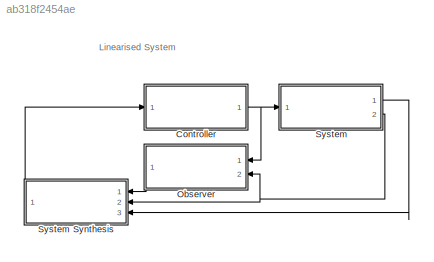
MODEL slx_ab318f2454ae
KIND model
CONFIG AbsTol = auto
CONFIG EnableMultiTasking = off
CONFIG FixedStep = auto
CONFIG MaxStep = auto
CONFIG MinStep = auto
CONFIG RelTol = 1e-3
CONFIG SampleTimeConstraint = Unconstrained
CONFIG SolverName = VariableStepAuto
CONFIG StartTime = 0.0
CONFIG StopTime = 300
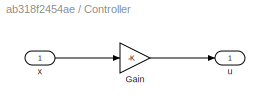
BLOCK [SubSystem] Controller
  Ports = [1, 1]
  RequestExecContextInheritance = off
BLOCK [Gain] Controller/Gain
  Gain = -K
  Multiplication = Matrix(K*u)
BLOCK [Outport] Controller/u
BLOCK [Inport] Controller/x
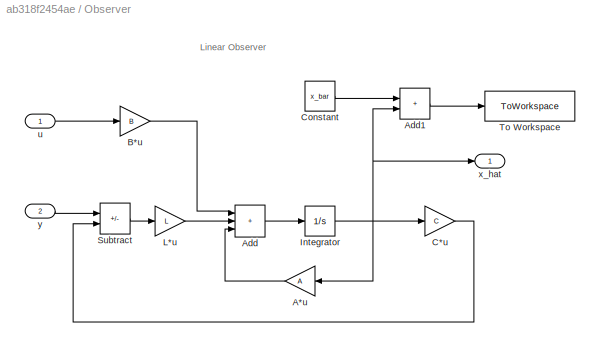
BLOCK [SubSystem] Observer
  Ports = [2, 1]
  RequestExecContextInheritance = off
BLOCK [Gain] Observer/A*u
  Gain = A
  Multiplication = Matrix(K*u)
BLOCK [Sum] Observer/Add
  IconShape = rectangular
  Inputs = +++
  Ports = [3, 1]
BLOCK [Sum] Observer/Add1
  IconShape = rectangular
  Ports = [2, 1]
BLOCK [Gain] Observer/B*u
  Gain = B
  Multiplication = Matrix(K*u)
BLOCK [Gain] Observer/C*u
  Gain = C
  Multiplication = Matrix(K*u)
BLOCK [Constant] Observer/Constant
  Value = x_bar
BLOCK [Integrator] Observer/Integrator
  InitialCondition = x0-x_bar'
  Ports = [1, 1]
BLOCK [Gain] Observer/L*u
  Gain = L
  Multiplication = Matrix(K*u)
BLOCK [Sum] Observer/Subtract
  IconShape = rectangular
  Inputs = +-
  Ports = [2, 1]
BLOCK [ToWorkspace] Observer/To Workspace
  FixptAsFi = on
  MaxDataPoints = inf
  Ports = [1]
  SampleTime = -1
  VariableName = x_hat
BLOCK [Inport] Observer/u
BLOCK [Outport] Observer/x_hat
BLOCK [Inport] Observer/y
  Port = 2
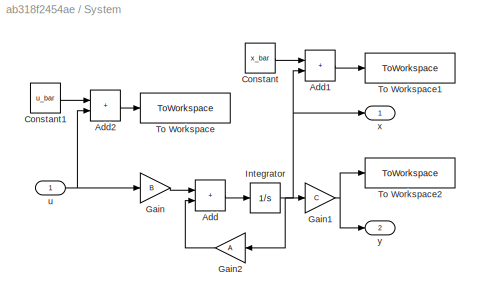
BLOCK [SubSystem] System
  Ports = [1, 2]
  RequestExecContextInheritance = off
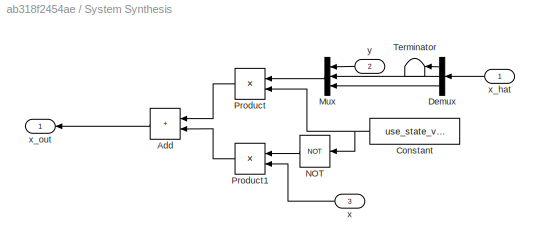
BLOCK [SubSystem] System Synthesis
  NameLocation = top
  Ports = [3, 1]
  RequestExecContextInheritance = off
BLOCK [Sum] System Synthesis/Add
  IconShape = rectangular
  NameLocation = top
  Ports = [2, 1]
BLOCK [Constant] System Synthesis/Constant
  NameLocation = top
  Value = use_state_variables
BLOCK [Demux] System Synthesis/Demux
  NameLocation = top
  Outputs = 3
  Ports = [1, 3]
BLOCK [Mux] System Synthesis/Mux
  DisplayOption = bar
  Inputs = 3
  NameLocation = top
  Ports = [3, 1]
BLOCK [Logic] System Synthesis/NOT
  AllPortsSameDT = off
  IconShape = distinctive
  NameLocation = top
  Operator = NOT
  OutDataTypeStr = boolean
  Ports = [1, 1]
BLOCK [Product] System Synthesis/Product
  NameLocation = top
  Ports = [2, 1]
BLOCK [Product] System Synthesis/Product1
  NameLocation = top
  Ports = [2, 1]
BLOCK [Terminator] System Synthesis/Terminator
  NameLocation = top
BLOCK [Inport] System Synthesis/x
  NameLocation = top
  Port = 3
BLOCK [Inport] System Synthesis/x_hat
  NameLocation = top
BLOCK [Outport] System Synthesis/x_out
  NameLocation = top
BLOCK [Inport] System Synthesis/y
  NameLocation = top
  Port = 2
BLOCK [Sum] System/Add
  IconShape = rectangular
  Ports = [2, 1]
BLOCK [Sum] System/Add1
  IconShape = rectangular
  Ports = [2, 1]
BLOCK [Sum] System/Add2
  IconShape = rectangular
  Ports = [2, 1]
BLOCK [Constant] System/Constant
  Value = x_bar
BLOCK [Constant] System/Constant1
  Value = u_bar
BLOCK [Gain] System/Gain
  Gain = B
  Multiplication = Matrix(K*u)
BLOCK [Gain] System/Gain1
  Gain = C
  Multiplication = Matrix(K*u)
BLOCK [Gain] System/Gain2
  Gain = A
  Multiplication = Matrix(K*u)
  NameLocation = top
BLOCK [Integrator] System/Integrator
  InitialCondition = x0-x_bar'
  Ports = [1, 1]
BLOCK [ToWorkspace] System/To Workspace
  FixptAsFi = on
  MaxDataPoints = inf
  Ports = [1]
  SampleTime = -1
  VariableName = u
BLOCK [ToWorkspace] System/To Workspace1
  FixptAsFi = on
  MaxDataPoints = inf
  Ports = [1]
  SampleTime = -1
  VariableName = x
BLOCK [ToWorkspace] System/To Workspace2
  FixptAsFi = on
  MaxDataPoints = inf
  Ports = [1]
  SampleTime = -1
  VariableName = y
BLOCK [Inport] System/u
BLOCK [Outport] System/x
BLOCK [Outport] System/y
  Port = 2
ANNOTATION (root): Linearised System
ANNOTATION Observer: Linear Observer
LINE Controller/Gain:1 -> Controller/u:1
LINE Controller/x:1 -> Controller/Gain:1
NET Controller:1 -> Observer:1, System:1
LINE Observer/A*u:1 -> Observer/Add:3
LINE Observer/Add1:1 -> Observer/To Workspace:1
LINE Observer/Add:1 -> Observer/Integrator:1
LINE Observer/B*u:1 -> Observer/Add:1
LINE Observer/C*u:1 -> Observer/Subtract:2
LINE Observer/Constant:1 -> Observer/Add1:1
NET Observer/Integrator:1 -> Observer/A*u:1, Observer/Add1:2, Observer/C*u:1, Observer/x_hat:1
LINE Observer/L*u:1 -> Observer/Add:2
LINE Observer/Subtract:1 -> Observer/L*u:1
LINE Observer/u:1 -> Observer/B*u:1
LINE Observer/y:1 -> Observer/Subtract:1
LINE Observer:1 -> System Synthesis:1
LINE System Synthesis/Add:1 -> System Synthesis/x_out:1
NET System Synthesis/Constant:1 -> System Synthesis/NOT:1, System Synthesis/Product:2
LINE System Synthesis/Demux:1 -> System Synthesis/Terminator:1
LINE System Synthesis/Demux:2 -> System Synthesis/Mux:2
LINE System Synthesis/Demux:3 -> System Synthesis/Mux:3
LINE System Synthesis/Mux:1 -> System Synthesis/Product:1
LINE System Synthesis/NOT:1 -> System Synthesis/Product1:1
LINE System Synthesis/Product1:1 -> System Synthesis/Add:2
LINE System Synthesis/Product:1 -> System Synthesis/Add:1
LINE System Synthesis/x:1 -> System Synthesis/Product1:2
LINE System Synthesis/x_hat:1 -> System Synthesis/Demux:1
LINE System Synthesis/y:1 -> System Synthesis/Mux:1
LINE System Synthesis:1 -> Controller:1
LINE System/Add1:1 -> System/To Workspace1:1
LINE System/Add2:1 -> System/To Workspace:1
LINE System/Add:1 -> System/Integrator:1
LINE System/Constant1:1 -> System/Add2:1
LINE System/Constant:1 -> System/Add1:1
NET System/Gain1:1 -> System/To Workspace2:1, System/y:1
LINE System/Gain2:1 -> System/Add:2
LINE System/Gain:1 -> System/Add:1
NET System/Integrator:1 -> System/Add1:2, System/Gain1:1, System/Gain2:1, System/x:1
NET System/u:1 -> System/Add2:2, System/Gain:1
LINE System:1 -> System Synthesis:3
NET System:2 -> Observer:2, System Synthesis:2
note: NET lines group one-source signal fan-out (src -> all destinations, sorted); 1:1 wires keep LINE
